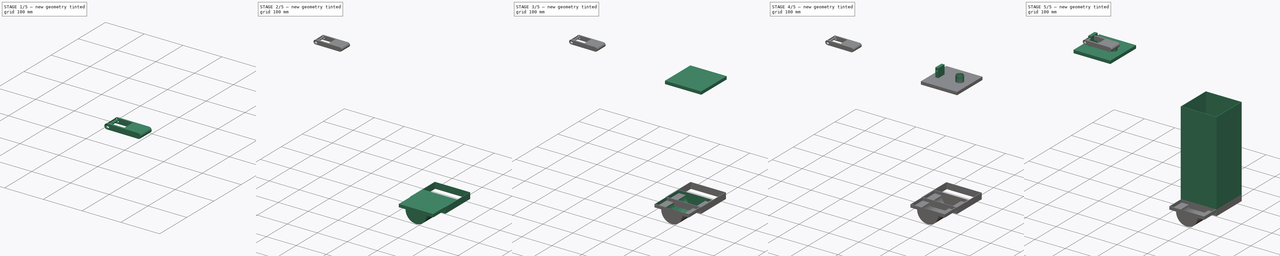
[diagram: build sequence overview — one tinted view per stage of 5, left to right]
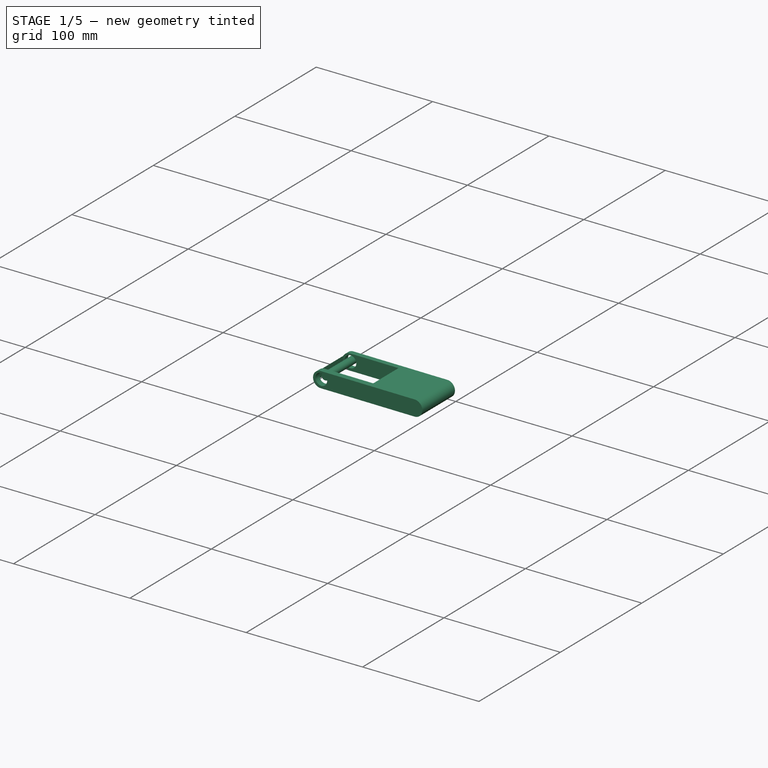
[diagram: stage 1 of 5 — iso view after this stage's code; geometry added in this stage tinted green]
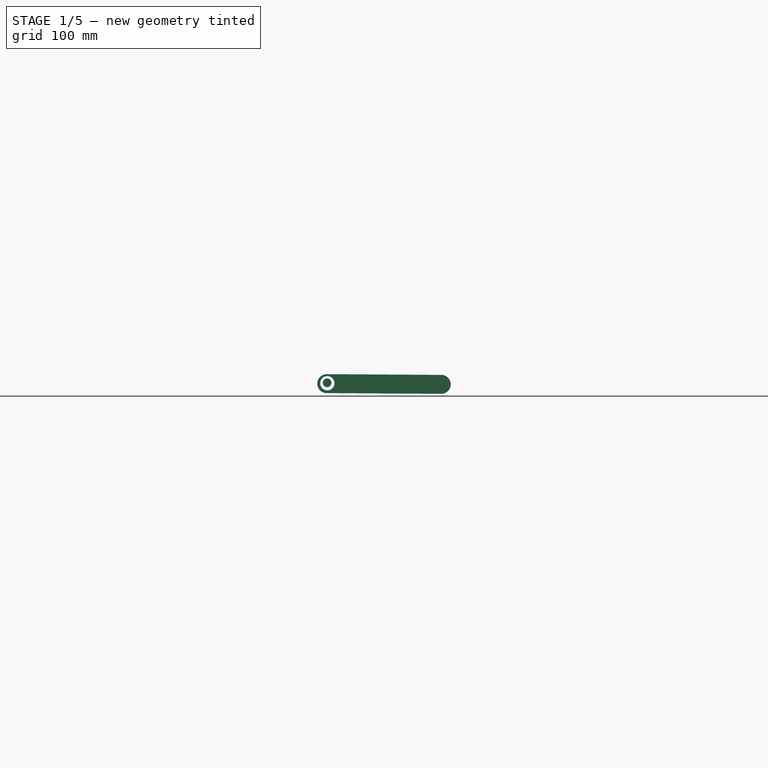
[diagram: stage 1 of 5 — front view after this stage's code; geometry added in this stage tinted green]
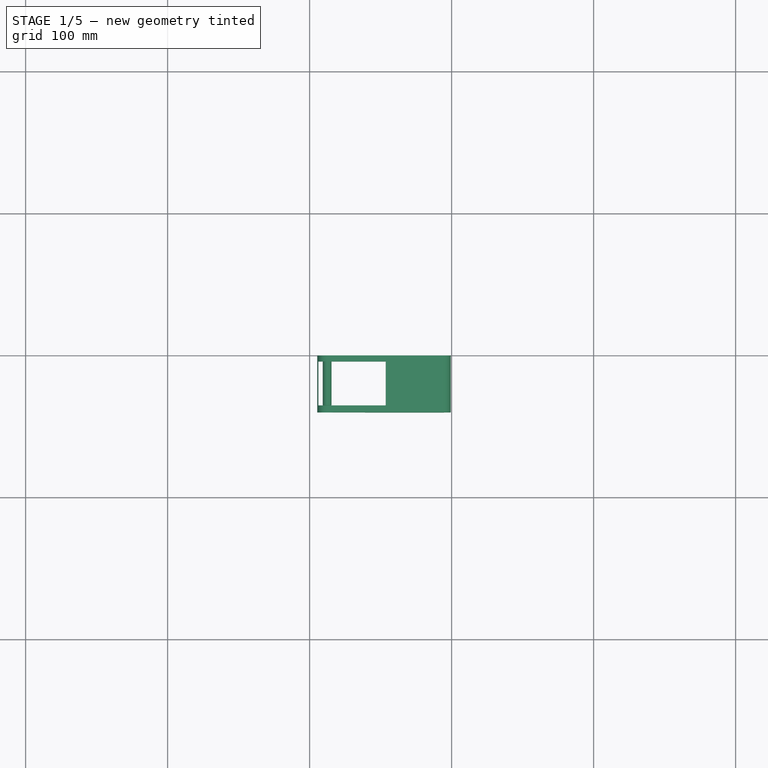
[diagram: stage 1 of 5 — top view after this stage's code; geometry added in this stage tinted green]
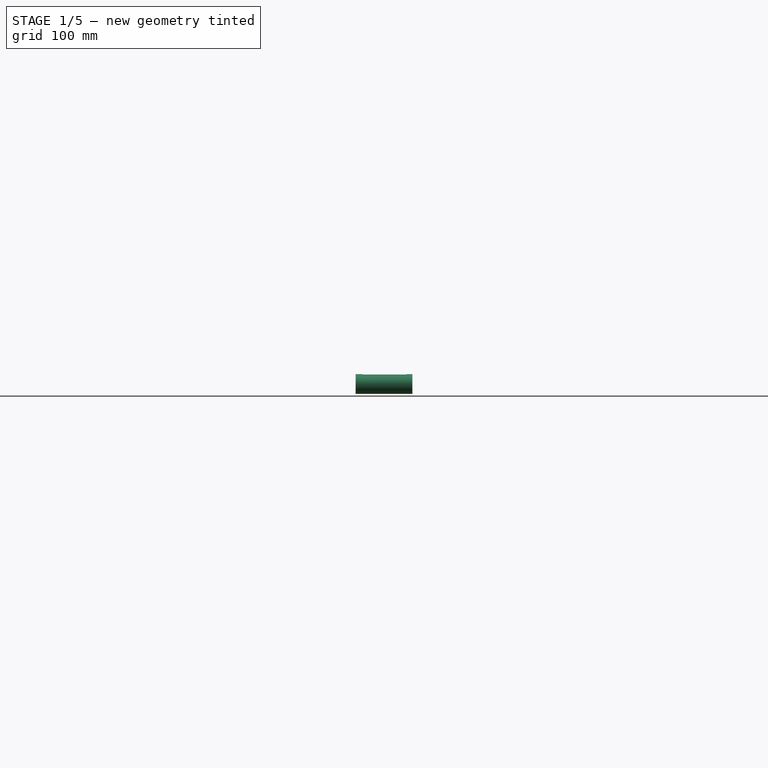
[diagram: stage 1 of 5 — right view after this stage's code; geometry added in this stage tinted green]
FCSTD DOCUMENT  (FreeCAD 0.20R29410 (Git))
Label: porfavorfunciona
License: All rights reserved
LicenseURL: http://en.wikipedia.org/wiki/All_rights_reserved
objects: Sketcher::SketchObject×17, PartDesign::Body×9, PartDesign::Pad×8, PartDesign::Pocket×5, Part::Fuse×2, PartDesign::SubtractiveCylinder×2, Part::FeaturePython×1, PartDesign::Hole×1
note: 61 computed .brp shape members not serialized (recipe doc carries the construction recipe); baked Part::Feature solids carry a one-line shape summary decoded from their .brp

FEATURE [PartDesign::Body] Body009
  Group = -> [Sketch016,Pad006]
  Origin = -> Origin009
  Placement = pos=(-350,0,350) rot=(0,0,1;0rad)
  Tip = -> Pad006
FEATURE [Sketcher::SketchObject] Sketch019
  FullyConstrained = false
  MapMode = 5
  Placement = pos=(0,0,0) rot=(1,0,0;1.5708rad)
  Support = -> [XZ_Plane010]
  sketch-geometry (4):
    g0: ArcOfCircle CenterX=-387.962 CenterY=380.893 CenterZ=0 NormalX=0 NormalY=0 NormalZ=1 AngleXU=0 Radius=6.66713 StartAngle=1.56468 EndAngle=4.70627
    g1: ArcOfCircle CenterX=-307.307 CenterY=380.4 CenterZ=0 NormalX=0 NormalY=0 NormalZ=1 AngleXU=0 Radius=6.66713 StartAngle=4.70627 EndAngle=7.84787
    g2: LineSegment StartX=-388.003 StartY=374.226 StartZ=0 EndX=-307.348 EndY=373.733 EndZ=0
    g3: LineSegment StartX=-307.266 StartY=387.067 StartZ=0 EndX=-387.921 EndY=387.56 EndZ=0
  constraints (5):
    c: Tangent(g0,g2) = -1.5708
    c: Tangent(g2,g1) = -1.5708
    c: Tangent(g1,g3) = -1.5708
    c: Tangent(g3,g0) = -1.5708
    c: Equal(g0,g1)
FEATURE [PartDesign::Pad] Pad008
  Direction = (0,-1,-2e-16)
  Length = 40
  Length2 = 10
  Placement = pos=(0,0,0) rot=(1,0,0;1.5708rad)
  Profile = -> Sketch019
  ReferenceAxis = -> Sketch019 [N_Axis]
  Type = 0
FEATURE [Sketcher::SketchObject] Sketch020
  FullyConstrained = false
  MapMode = 5
  Placement = pos=(2.35558,-8.55e-14,385.174) rot=(0.003058,0,0.999995;3.14159rad)
  Support = -> [Pad008]
  sketch-geometry (4):
    g0: LineSegment StartX=348.646 StartY=35.1548 StartZ=0 EndX=396.159 EndY=35.1548 EndZ=0
    g1: LineSegment StartX=396.159 StartY=35.1548 StartZ=0 EndX=396.159 EndY=4.15477 EndZ=0
    g2: LineSegment StartX=396.159 StartY=4.15477 StartZ=0 EndX=348.646 EndY=4.15477 EndZ=0
    g3: LineSegment StartX=348.646 StartY=4.15477 StartZ=0 EndX=348.646 EndY=35.1548 EndZ=0
  constraints (9):
    c: Coincident(g0,g1)
    c: Coincident(g1,g2)
    c: Coincident(g2,g3)
    c: Coincident(g3,g0)
    c: Horizontal(g0)
    c: Horizontal(g2)
    c: Vertical(g1)
    c: Vertical(g3)
    c: DistanceY(g1,g1) = 31
FEATURE [PartDesign::Pocket] Pocket
  BaseFeature = -> Pad008
  Direction = (-0.00611553,2e-16,-0.999981)
  Length = 5
  Length2 = 5
  Placement = pos=(0,0,0) rot=(1,0,0;1.5708rad)
  Profile = -> Sketch020
  ReferenceAxis = -> Sketch020 [N_Axis]
  Type = 1
FEATURE [Sketcher::SketchObject] Sketch021
  FullyConstrained = false
  MapMode = 5
  Placement = pos=(0,0,0) rot=(-1,0,0;1.5708rad)
  Support = -> [Pocket]
  sketch-geometry (1):
    g0: Circle CenterX=-387.544 CenterY=-381.199 CenterZ=0 NormalX=0 NormalY=0 NormalZ=1 AngleXU=0 Radius=5.01417
FEATURE [PartDesign::Pocket] Pocket003
  BaseFeature = -> Pocket
  Direction = (0,-1,-2e-16)
  Length = 5
  Length2 = 5
  Placement = pos=(0,0,0) rot=(1,0,0;1.5708rad)
  Profile = -> Sketch021
  ReferenceAxis = -> Sketch021 [N_Axis]
  Type = 1
FEATURE [PartDesign::Body] Body010
  Group = -> [Sketch019,Pad008,Sketch020,Pocket,Sketch021,Pocket003,Sketch023,Pocket004]
  Origin = -> Origin010
  Placement = pos=(0,18,0) rot=(0,0,1;0rad)
  Tip = -> Pocket004
FEATURE [Sketcher::SketchObject] Sketch024
  FullyConstrained = false
  MapMode = 5
  Placement = pos=(0,0,0) rot=(1,0,0;1.5708rad)
  Support = -> [XZ_Plane011]
  sketch-geometry (1):
    g0: Circle CenterX=-387.675 CenterY=381.498 CenterZ=0 NormalX=0 NormalY=0 NormalZ=1 AngleXU=0 Radius=3.06256
FEATURE [PartDesign::Pad] Pad009
  Direction = (0,-1,2e-16)
  Length = 35
  Length2 = 10
  Placement = pos=(0,0,0) rot=(1,0,0;1.5708rad)
  Profile = -> Sketch024
  ReferenceAxis = -> Sketch024 [N_Axis]
  Type = 0
FEATURE [PartDesign::Body] Body011
  Group = -> [Sketch024,Pad009]
  Origin = -> Origin011
  Tip = -> Pad009
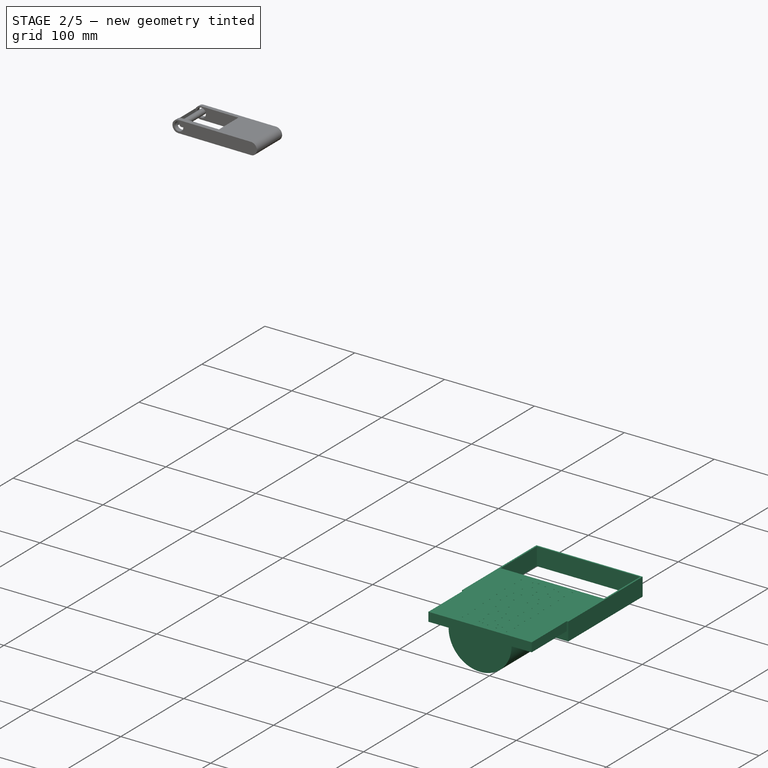
[diagram: stage 2 of 5 — iso view after this stage's code; geometry added in this stage tinted green]
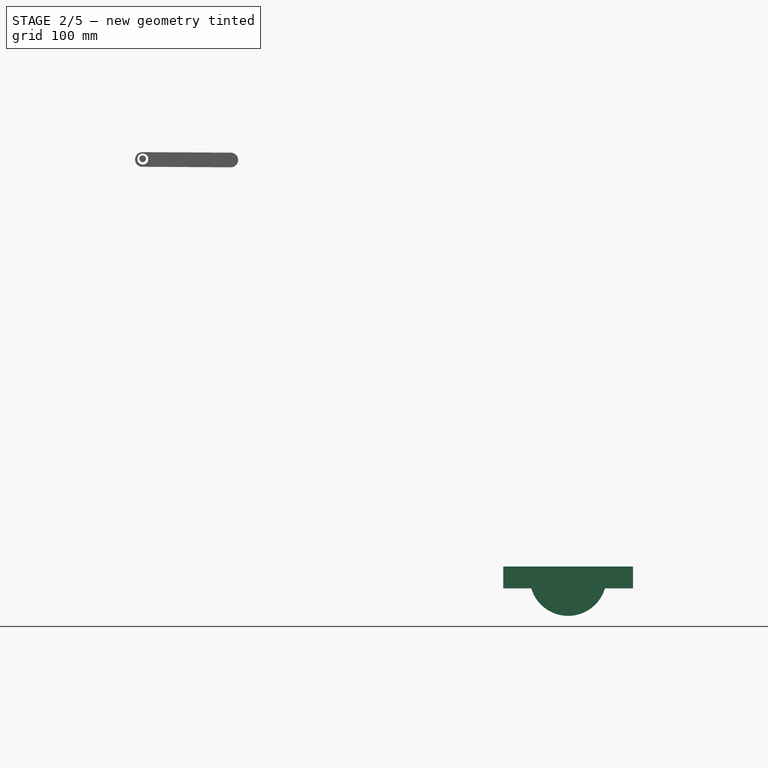
[diagram: stage 2 of 5 — front view after this stage's code; geometry added in this stage tinted green]
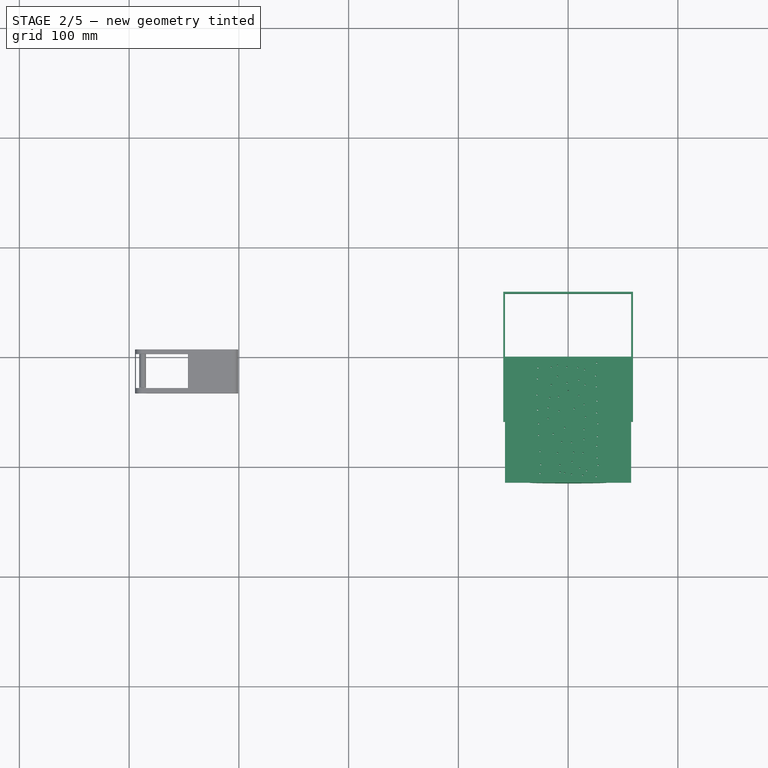
[diagram: stage 2 of 5 — top view after this stage's code; geometry added in this stage tinted green]
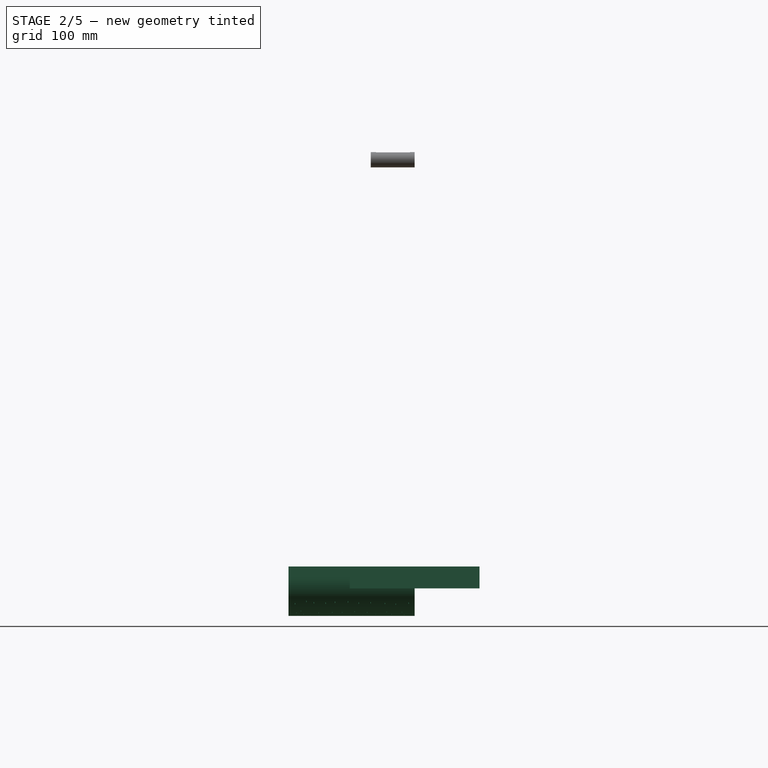
[diagram: stage 2 of 5 — right view after this stage's code; geometry added in this stage tinted green]
FEATURE [PartDesign::Body] Body004
  Group = -> [Sketch004,Pad002,Cylinder001,Sketch012,Pad003,Sketch013,Sketch014,Pocket001]
  Origin = -> Origin004
  Tip = -> Pocket001
FEATURE [PartDesign::Pad] Pad005
  Direction = (0,-1,2e-16)
  Length = 114.85
  Length2 = 10
  Placement = pos=(0,0,0) rot=(1,0,0;1.5708rad)
  Profile = -> Sketch010
  ReferenceAxis = -> Sketch010 [N_Axis]
  Type = 0
FEATURE [Sketcher::SketchObject] Sketch016
  AttachmentOffset = pos=(0,0,1) rot=(0,0,1;0rad)
  FullyConstrained = true
  MapMode = 5
  sketch-geometry (10):
    g0: LineSegment StartX=-59.1 StartY=59.1 StartZ=0 EndX=-59.1 EndY=-59.1 EndZ=0
    g1: LineSegment StartX=-59.1 StartY=-59.1 StartZ=0 EndX=59.1 EndY=-59.1 EndZ=0
    g2: LineSegment StartX=59.1 StartY=-59.1 StartZ=0 EndX=59.1 EndY=59.1 EndZ=0
    g3: LineSegment StartX=59.1 StartY=59.1 StartZ=0 EndX=-59.1 EndY=59.1 EndZ=0
    g4: GeomPoint X=0 Y=0 Z=0
    g5: LineSegment StartX=-57.45 StartY=57.45 StartZ=0 EndX=-57.45 EndY=-57.45 EndZ=0
    g6: LineSegment StartX=-57.45 StartY=-57.45 StartZ=0 EndX=57.45 EndY=-57.45 EndZ=0
    g7: LineSegment StartX=57.45 StartY=-57.45 StartZ=0 EndX=57.45 EndY=57.45 EndZ=0
    g8: LineSegment StartX=57.45 StartY=57.45 StartZ=0 EndX=-57.45 EndY=57.45 EndZ=0
    g9: GeomPoint X=0 Y=0 Z=0
  constraints (24):
    c: Coincident(g0,g1)
    c: Coincident(g1,g2)
    c: Coincident(g2,g3)
    c: Coincident(g3,g0)
    c: Horizontal(g1)
    c: Horizontal(g3)
    c: Vertical(g0)
    c: Vertical(g2)
    c: Symmetric(g1,g0,g4)
    c: Coincident(g4,g-1)
    c: Coincident(g5,g6)
    c: Coincident(g6,g7)
    c: Coincident(g7,g8)
    c: Coincident(g8,g5)
    c: Horizontal(g6)
    c: Horizontal(g8)
    c: Vertical(g5)
    c: Vertical(g7)
    c: Symmetric(g6,g5,g9)
    c: Coincident(g9,g4)
    c: DistanceY(g2,g2) = 118.2
    c: DistanceX(g1,g1) = 118.2
    c: DistanceY(g7,g7) = 114.9
    c: DistanceX(g8,g8) = 114.9
FEATURE [Sketcher::SketchObject] Sketch017
  FullyConstrained = false
  MapMode = 5
  Placement = pos=(0,1.1e-15,10) rot=(0,0,1;3.14159rad)
  Support = -> [Pad005]
  sketch-geometry (58):
    g0: Circle CenterX=27.5383 CenterY=10.0935 CenterZ=0 NormalX=0 NormalY=0 NormalZ=1 AngleXU=0 Radius=4.64971
    g1: Circle CenterX=27.9836 CenterY=20.0851 CenterZ=0 NormalX=0 NormalY=0 NormalZ=1 AngleXU=0 Radius=5.47488
    g2: Circle CenterX=28.4059 CenterY=34.8127 CenterZ=0 NormalX=0 NormalY=0 NormalZ=1 AngleXU=0 Radius=4.80778
    g3: Circle CenterX=27.8455 CenterY=48.5009 CenterZ=0 NormalX=0 NormalY=0 NormalZ=1 AngleXU=0 Radius=5.12688
    g4: Circle CenterX=27.0114 CenterY=61.0719 CenterZ=0 NormalX=0 NormalY=0 NormalZ=1 AngleXU=0 Radius=5.12689
    g5: Circle CenterX=26.939 CenterY=71.5508 CenterZ=0 NormalX=0 NormalY=0 NormalZ=1 AngleXU=0 Radius=5.76529
    g6: Circle CenterX=25.6432 CenterY=86.3241 CenterZ=0 NormalX=0 NormalY=0 NormalZ=1 AngleXU=0 Radius=6.42444
    g7: Circle CenterX=25.0267 CenterY=98.2974 CenterZ=0 NormalX=0 NormalY=0 NormalZ=1 AngleXU=0 Radius=6.14656
    g8: Circle CenterX=25.5248 CenterY=106.275 CenterZ=0 NormalX=0 NormalY=0 NormalZ=1 AngleXU=0 Radius=7.48836
    g9: Circle CenterX=-25.5527 CenterY=109.175 CenterZ=0 NormalX=0 NormalY=0 NormalZ=1 AngleXU=0 Radius=3.71825
    g10: Circle CenterX=-26.0228 CenterY=5.65323 CenterZ=0 NormalX=0 NormalY=0 NormalZ=1 AngleXU=0 Radius=4.81077
    g11: Circle CenterX=-25.0691 CenterY=17.4157 CenterZ=0 NormalX=0 NormalY=0 NormalZ=1 AngleXU=0 Radius=6.04019
    g12: Circle CenterX=-25.7049 CenterY=27.2707 CenterZ=0 NormalX=0 NormalY=0 NormalZ=1 AngleXU=0 Radius=6.484
    g13: Circle CenterX=-26.3407 CenterY=40.3048 CenterZ=0 NormalX=0 NormalY=0 NormalZ=1 AngleXU=0 Radius=6.54607
    g14: Circle CenterX=-26.0228 CenterY=51.1136 CenterZ=0 NormalX=0 NormalY=0 NormalZ=1 AngleXU=0 Radius=5.08647
    g15: Circle CenterX=-26.9765 CenterY=60.9686 CenterZ=0 NormalX=0 NormalY=0 NormalZ=1 AngleXU=0 Radius=5.73111
    g16: Circle CenterX=-26.6586 CenterY=72.7311 CenterZ=0 NormalX=0 NormalY=0 NormalZ=1 AngleXU=0 Radius=4.13276
    g17: Circle CenterX=-26.0228 CenterY=81.3145 CenterZ=0 NormalX=0 NormalY=0 NormalZ=1 AngleXU=0 Radius=7.85167
    g18: Circle CenterX=-26.3325 CenterY=92.0661 CenterZ=0 NormalX=0 NormalY=0 NormalZ=1 AngleXU=0 Radius=6.85924
    g19: Circle CenterX=-27.3026 CenterY=98.8564 CenterZ=0 NormalX=0 NormalY=0 NormalZ=1 AngleXU=0 Radius=7.5565
    g20: Circle CenterX=0 CenterY=31.0284 CenterZ=0 NormalX=0 NormalY=0 NormalZ=1 AngleXU=0 Radius=7.26534
    g21: Circle CenterX=8.31093 CenterY=49.5241 CenterZ=0 NormalX=0 NormalY=0 NormalZ=1 AngleXU=0 Radius=8.72938
    g22: Circle CenterX=0.99131 CenterY=23.831 CenterZ=0 NormalX=0 NormalY=0 NormalZ=1 AngleXU=0 Radius=6.29418
    g23: Circle CenterX=13.6183 CenterY=70.3328 CenterZ=0 NormalX=0 NormalY=0 NormalZ=1 AngleXU=0 Radius=9.19506
    g24: Circle CenterX=3.24578 CenterY=64.6758 CenterZ=0 NormalX=0 NormalY=0 NormalZ=1 AngleXU=0 Radius=7.72356
    g25: Circle CenterX=7.48098 CenterY=98.5782 CenterZ=0 NormalX=0 NormalY=0 NormalZ=1 AngleXU=0 Radius=4.24392
    g26: Circle CenterX=-10.5113 CenterY=101.478 CenterZ=0 NormalX=0 NormalY=0 NormalZ=1 AngleXU=0 Radius=3.28004
    g27: Circle CenterX=3.23367 CenterY=106.046 CenterZ=0 NormalX=0 NormalY=0 NormalZ=1 AngleXU=0 Radius=1.33466
    g28: Circle CenterX=-13.2665 CenterY=107.98 CenterZ=0 NormalX=0 NormalY=0 NormalZ=1 AngleXU=0 Radius=0.966177
    g29: Circle CenterX=-13.5134 CenterY=87.6754 CenterZ=0 NormalX=0 NormalY=0 NormalZ=1 AngleXU=0 Radius=4.47417
    g30: Circle CenterX=-4.9767 CenterY=87.2011 CenterZ=0 NormalX=0 NormalY=0 NormalZ=1 AngleXU=0 Radius=4.67091
    g31: Circle CenterX=9.72529 CenterY=87.6754 CenterZ=0 NormalX=0 NormalY=0 NormalZ=1 AngleXU=0 Radius=5.7305
    g32: Circle CenterX=-3.07968 CenterY=78.1902 CenterZ=0 NormalX=0 NormalY=0 NormalZ=1 AngleXU=0 Radius=4.6949
    g33: Circle CenterX=-14.4619 CenterY=75.3446 CenterZ=0 NormalX=0 NormalY=0 NormalZ=1 AngleXU=0 Radius=4.37243
    g34: Circle CenterX=-14.4619 CenterY=66.3337 CenterZ=0 NormalX=0 NormalY=0 NormalZ=1 AngleXU=0 Radius=4.37243
    g35: Circle CenterX=-15.8847 CenterY=54.9515 CenterZ=0 NormalX=0 NormalY=0 NormalZ=1 AngleXU=0 Radius=5.6911
    g36: Circle CenterX=-5.92523 CenterY=58.2714 CenterZ=0 NormalX=0 NormalY=0 NormalZ=1 AngleXU=0 Radius=4.76627
    g37: Circle CenterX=-5.45097 CenterY=47.3634 CenterZ=0 NormalX=0 NormalY=0 NormalZ=1 AngleXU=0 Radius=3.31979
    g38: Circle CenterX=-14.4619 CenterY=43.5693 CenterZ=0 NormalX=0 NormalY=0 NormalZ=1 AngleXU=0 Radius=5.71083
    g39: Circle CenterX=-15.4104 CenterY=25.5475 CenterZ=0 NormalX=0 NormalY=0 NormalZ=1 AngleXU=0 Radius=5.6911
    g40: Circle CenterX=-9.71929 CenterY=35.507 CenterZ=0 NormalX=0 NormalY=0 NormalZ=1 AngleXU=0 Radius=4.07972
    g41: Circle CenterX=-9.71929 CenterY=21.2792 CenterZ=0 NormalX=0 NormalY=0 NormalZ=1 AngleXU=0 Radius=4.76624
    g42: Circle CenterX=-14.9361 CenterY=11.794 CenterZ=0 NormalX=0 NormalY=0 NormalZ=1 AngleXU=0 Radius=3.41993
    g43: Circle CenterX=-8.77078 CenterY=9.897 CenterZ=0 NormalX=0 NormalY=0 NormalZ=1 AngleXU=0 Radius=4.29459
    g44: Circle CenterX=1.18864 CenterY=9.42273 CenterZ=0 NormalX=0 NormalY=0 NormalZ=1 AngleXU=0 Radius=3.31981
    g45: Circle CenterX=9.72529 CenterY=7.99997 CenterZ=0 NormalX=0 NormalY=0 NormalZ=1 AngleXU=0 Radius=3.8236
    g46: Circle CenterX=15.4164 CenterY=9.42273 CenterZ=0 NormalX=0 NormalY=0 NormalZ=1 AngleXU=0 Radius=4.76627
    g47: Circle CenterX=9.72529 CenterY=17.9594 CenterZ=0 NormalX=0 NormalY=0 NormalZ=1 AngleXU=0 Radius=4.47418
    g48: Circle CenterX=15.4164 CenterY=25.5475 CenterZ=0 NormalX=0 NormalY=0 NormalZ=1 AngleXU=0 Radius=5.30239
    g49: Circle CenterX=8.77678 CenterY=36.4555 CenterZ=0 NormalX=0 NormalY=0 NormalZ=1 AngleXU=0 Radius=4.05205
    g50: Circle CenterX=16.8392 CenterY=37.404 CenterZ=0 NormalX=0 NormalY=0 NormalZ=1 AngleXU=0 Radius=4.29458
    g51: Circle CenterX=18.2619 CenterY=46.4149 CenterZ=0 NormalX=0 NormalY=0 NormalZ=1 AngleXU=0 Radius=5.21686
    g52: Circle CenterX=18.2619 CenterY=56.3743 CenterZ=0 NormalX=0 NormalY=0 NormalZ=1 AngleXU=0 Radius=2.76539
    g53: Circle CenterX=5.93123 CenterY=77.7159 CenterZ=0 NormalX=0 NormalY=0 NormalZ=1 AngleXU=0 Radius=3.3535
    g54: Circle CenterX=-3.55393 CenterY=95.7378 CenterZ=0 NormalX=0 NormalY=0 NormalZ=1 AngleXU=0 Radius=3.79405
    g55: Circle CenterX=7.35401 CenterY=105.223 CenterZ=0 NormalX=0 NormalY=0 NormalZ=1 AngleXU=0 Radius=6.45061
    g56: Circle CenterX=-3.07968 CenterY=107.12 CenterZ=0 NormalX=0 NormalY=0 NormalZ=1 AngleXU=0 Radius=5.40739
    g57: Circle CenterX=-16.8332 CenterY=103.8 CenterZ=0 NormalX=0 NormalY=0 NormalZ=1 AngleXU=0 Radius=7.12967
FEATURE [PartDesign::Hole] Hole
  BaseFeature = -> Pad005
  CustomThreadClearance = 0
  Depth = 340.522
  DepthType = 1
  Diameter = 1.2
  DrillForDepth = false
  DrillPoint = 1
  DrillPointAngle = 118
  HoleCutCountersinkAngle = 90
  HoleCutCustomValues = false
  HoleCutDepth = 0
  HoleCutDiameter = 6.1
  HoleCutType = 0
  ModelThread = false
  Placement = pos=(0,0,0) rot=(1,0,0;1.5708rad)
  Profile = -> Sketch017
  Tapered = false
  TaperedAngle = 90
  ThreadClass = 0
  ThreadDepth = 340.522
  ThreadDepthType = 0
  ThreadDirection = 0
  ThreadFit = 0
  ThreadSize = 0
  ThreadType = 1
  Threaded = false
  UseCustomThreadClearance = false
FEATURE [PartDesign::Body] Body008
  Group = -> [Sketch010,Pad005,Sketch017,Hole,Sketch018,Pocket002,Cylinder]
  Origin = -> Origin008
  Placement = pos=(0,350,-350) rot=(0,0,1;0rad)
  Tip = -> Cylinder
FEATURE [PartDesign::Pad] Pad006
  Direction = (0,0,1)
  Length = 10
  Length2 = 10
  Profile = -> Sketch016
  ReferenceAxis = -> Sketch016 [N_Axis]
  Type = 4
FEATURE [Sketcher::SketchObject] Sketch023
  FullyConstrained = false
  MapMode = 5
  Placement = pos=(2.27,3,372.84) rot=(1,0,0;3.14159rad)
  sketch-geometry (1):
    g0: Circle CenterX=-325.294 CenterY=20.778 CenterZ=0 NormalX=0 NormalY=0 NormalZ=1 AngleXU=0 Radius=12.5
  constraints (1):
    c: Radius(g0) = 12.5
FEATURE [PartDesign::Pocket] Pocket004
  BaseFeature = -> Pocket003
  Direction = (0,1e-16,1)
  Length = 10
  Length2 = 5
  Placement = pos=(0,0,0) rot=(1,0,0;1.5708rad)
  Profile = -> Sketch023
  ReferenceAxis = -> Sketch023 [N_Axis]
  Type = 0
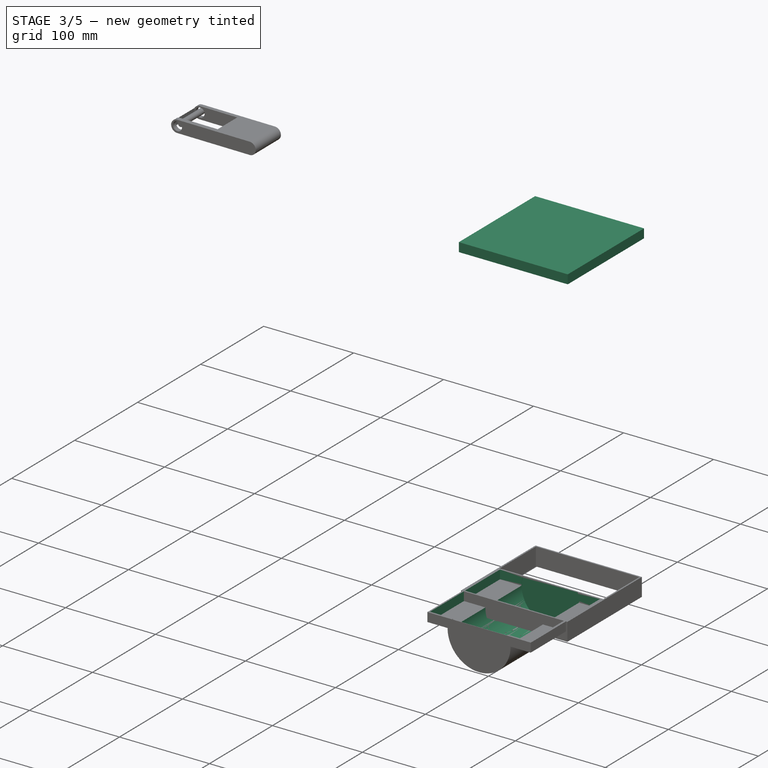
[diagram: stage 3 of 5 — iso view after this stage's code; geometry added in this stage tinted green]
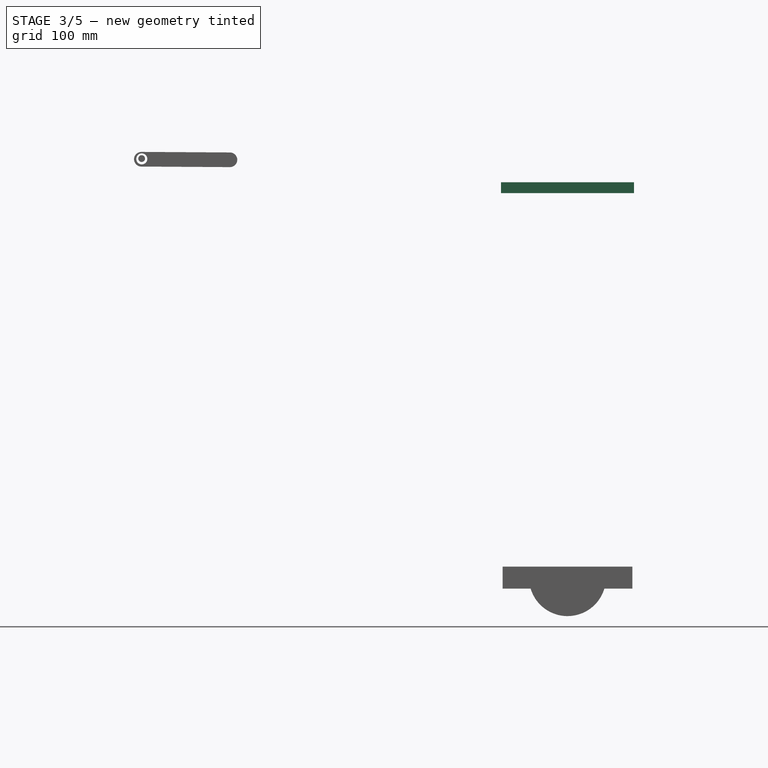
[diagram: stage 3 of 5 — front view after this stage's code; geometry added in this stage tinted green]
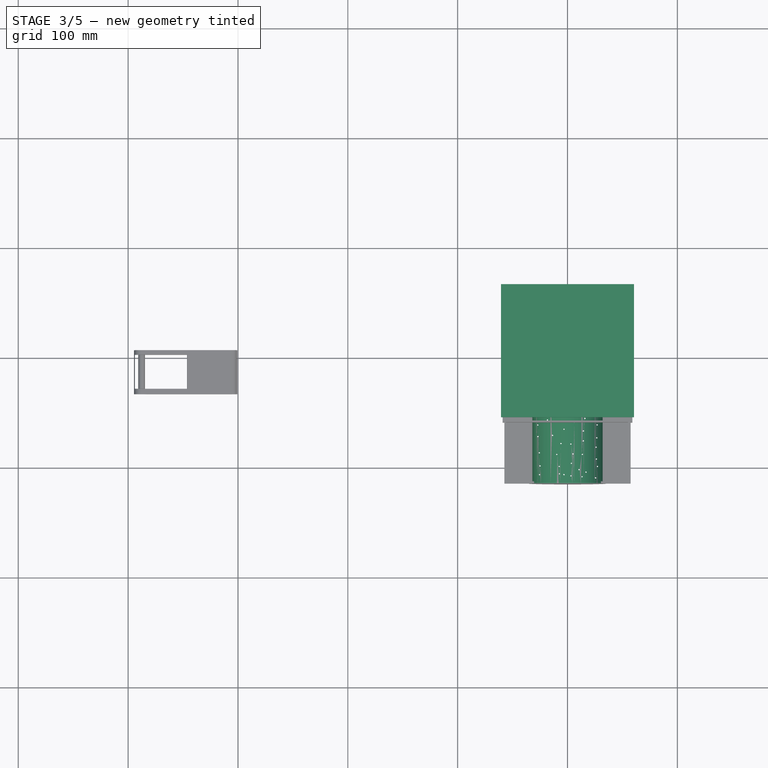
[diagram: stage 3 of 5 — top view after this stage's code; geometry added in this stage tinted green]
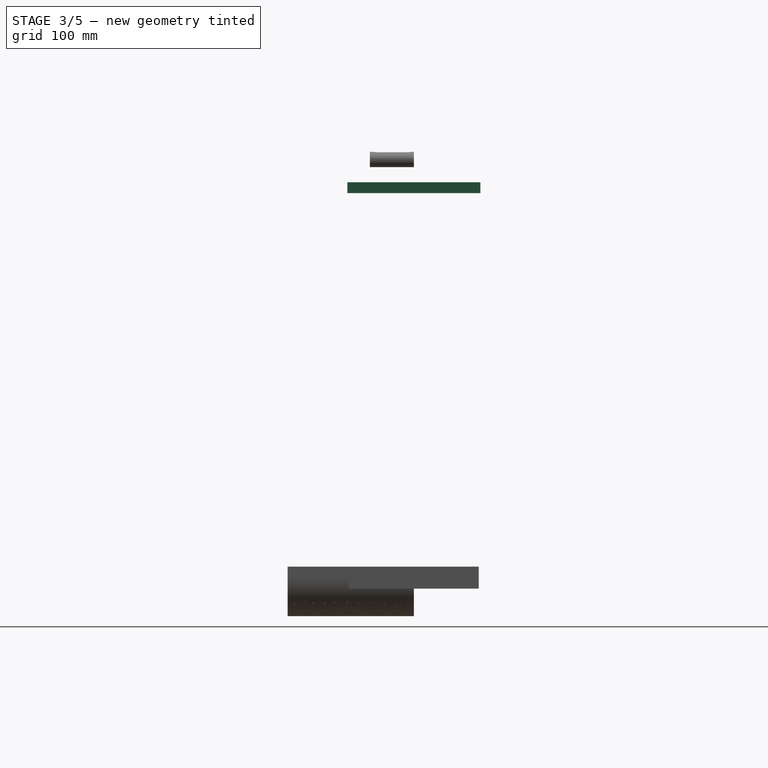
[diagram: stage 3 of 5 — right view after this stage's code; geometry added in this stage tinted green]
FEATURE [Sketcher::SketchObject] Sketch007
  AttachmentOffset = pos=(0,0,-180) rot=(0,0,1;0rad)
  FullyConstrained = false
  MapMode = 5
  Placement = pos=(0,0,-180) rot=(0,0,1;0rad)
  Support = -> [XY_Plane005]
  sketch-geometry (10):
    g0: LineSegment StartX=57.4163 StartY=59.0411 StartZ=0 EndX=34.9663 EndY=59.0411 EndZ=0
    g1: LineSegment StartX=34.9663 StartY=59.0411 StartZ=0 EndX=34.9663 EndY=-55.8089 EndZ=0
    g2: LineSegment StartX=34.9663 StartY=-55.8089 StartZ=0 EndX=57.4163 EndY=-55.8089 EndZ=0
    g3: LineSegment StartX=57.4163 StartY=-55.8089 StartZ=0 EndX=57.4163 EndY=59.0411 EndZ=0
    g4: LineSegment StartX=-57.7305 StartY=58.4271 StartZ=0 EndX=-35.2805 EndY=58.4271 EndZ=0
    g5: LineSegment StartX=-35.2805 StartY=58.4271 StartZ=0 EndX=-35.2805 EndY=-56.4229 EndZ=0
    g6: LineSegment StartX=-35.2805 StartY=-56.4229 StartZ=0 EndX=-57.7305 EndY=-56.4229 EndZ=0
    g7: LineSegment StartX=-57.7305 StartY=-56.4229 StartZ=0 EndX=-57.7305 EndY=58.4271 EndZ=0
    g8: LineSegment StartX=34.9527 StartY=57.5008 StartZ=0 EndX=34.9527 EndY=52.6508 EndZ=0
    g9: LineSegment StartX=-35.2805 StartY=52.6508 StartZ=0 EndX=-35.2805 EndY=57.5008 EndZ=0
  constraints (23):
    c: Coincident(g0,g1)
    c: Coincident(g1,g2)
    c: Coincident(g2,g3)
    c: Coincident(g3,g0)
    c: Horizontal(g0)
    c: Horizontal(g2)
    c: Vertical(g1)
    c: Vertical(g3)
    c: Coincident(g4,g5)
    c: Coincident(g5,g6)
    c: Coincident(g6,g7)
    c: Coincident(g7,g4)
    c: Horizontal(g4)
    c: Horizontal(g6)
    c: Vertical(g5)
    c: Vertical(g7)
    c: Vertical(g8)
    c: Vertical(g9)
    c: PointOnObject(g9,g5)
    c: DistanceX(g0,g0) = 22.45
    c: DistanceX(g4,g4) = 22.45
    c: DistanceY(g7,g7) = 114.85
    c: DistanceY(g3,g3) = 114.85
FEATURE [PartDesign::Body] Body005
  Group = -> [Sketch007]
  Origin = -> Origin005
FEATURE [PartDesign::Pad] Pad002
  Direction = (0,0,1)
  Length = 10
  Length2 = 10
  Profile = -> Sketch004
  ReferenceAxis = -> Sketch004 [N_Axis]
  Type = 0
FEATURE [Sketcher::SketchObject] Sketch018
  FullyConstrained = false
  MapMode = 5
  Placement = pos=(0,1.1e-15,10) rot=(0,0,1;3.14159rad)
  Support = -> [Hole]
  sketch-geometry (4):
    g0: LineSegment StartX=-55.1145 StartY=112.802 StartZ=0 EndX=55.8855 EndY=112.802 EndZ=0
    g1: LineSegment StartX=55.8855 StartY=112.802 StartZ=0 EndX=55.8855 EndY=1.8019 EndZ=0
    g2: LineSegment StartX=55.8855 StartY=1.8019 StartZ=0 EndX=-55.1145 EndY=1.8019 EndZ=0
    g3: LineSegment StartX=-55.1145 StartY=1.8019 StartZ=0 EndX=-55.1145 EndY=112.802 EndZ=0
  constraints (10):
    c: Coincident(g0,g1)
    c: Coincident(g1,g2)
    c: Coincident(g2,g3)
    c: Coincident(g3,g0)
    c: Horizontal(g0)
    c: Horizontal(g2)
    c: Vertical(g1)
    c: Vertical(g3)
    c: DistanceX(g0,g0) = 111
    c: DistanceY(g3,g3) = 111
FEATURE [PartDesign::Pocket] Pocket002
  BaseFeature = -> Hole
  Direction = (0,-2e-16,-1)
  Length = 9.8
  Length2 = 5
  Placement = pos=(0,0,0) rot=(1,0,0;1.5708rad)
  Profile = -> Sketch018
  ReferenceAxis = -> Sketch018 [N_Axis]
  Type = 0
FEATURE [PartDesign::SubtractiveCylinder] Cylinder
  Angle = 360
  AttacherType = Attacher::AttachEngine3D
  AttachmentOffset = pos=(0,0,1.5) rot=(0,0,1;0rad)
  BaseFeature = -> Pocket002
  FirstAngle = 0
  Height = 113
  MapMode = 5
  Placement = pos=(0,-1.5,-3e-16) rot=(1,0,0;1.5708rad)
  Radius = 32
  SecondAngle = 0
  Support = -> [XZ_Plane008]
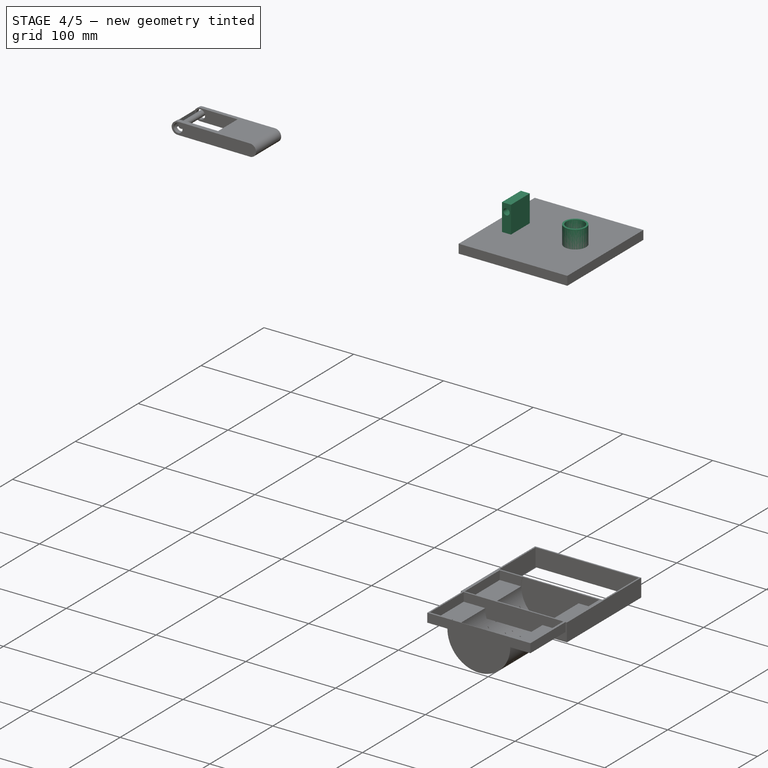
[diagram: stage 4 of 5 — iso view after this stage's code; geometry added in this stage tinted green]
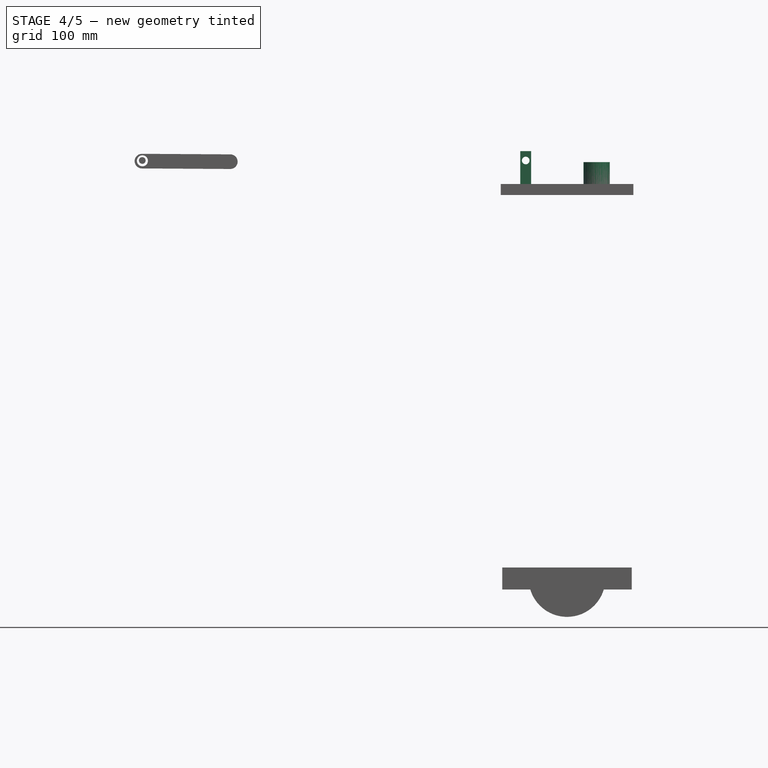
[diagram: stage 4 of 5 — front view after this stage's code; geometry added in this stage tinted green]
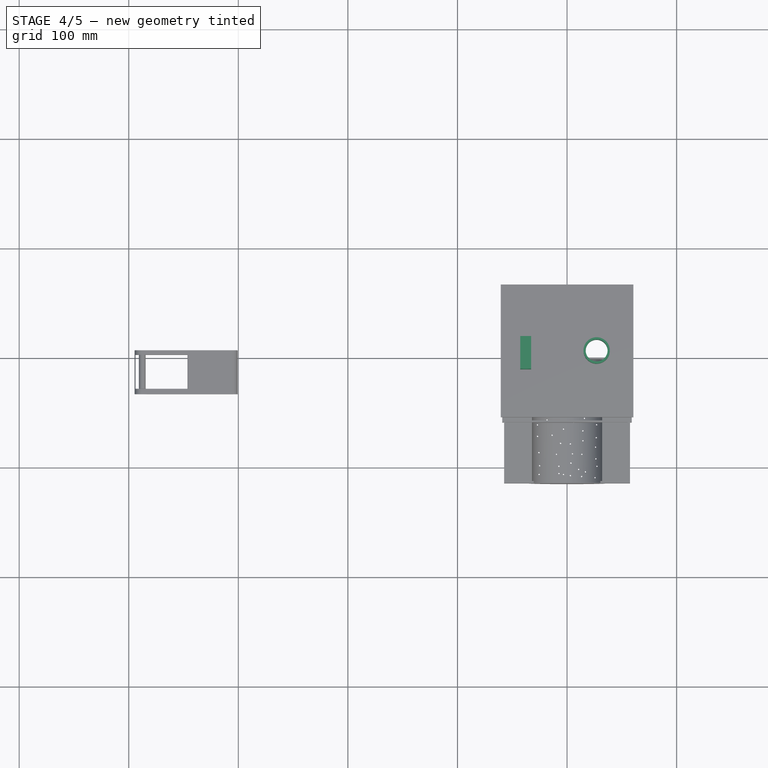
[diagram: stage 4 of 5 — top view after this stage's code; geometry added in this stage tinted green]
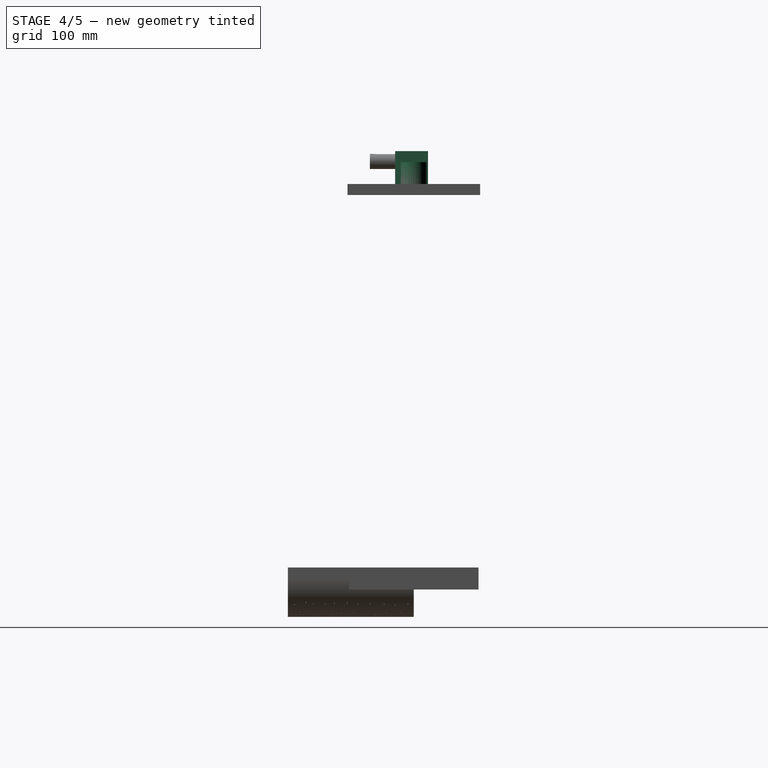
[diagram: stage 4 of 5 — right view after this stage's code; geometry added in this stage tinted green]
FEATURE [PartDesign::SubtractiveCylinder] Cylinder001
  Angle = 360
  AttacherType = Attacher::AttachEngine3D
  AttachmentOffset = pos=(27,0,-367) rot=(0,0,1;0rad)
  BaseFeature = -> Pad002
  FirstAngle = 0
  Height = 23
  MapMode = 3
  Placement = pos=(27,-8.15e-14,367) rot=(1,0,0;3.14159rad)
  Radius = 10
  SecondAngle = 0
  Support = -> [XZ_Plane004]
FEATURE [Sketcher::SketchObject] Sketch009
  FullyConstrained = true
  MapMode = 5
  Placement = pos=(0,0,0) rot=(1,0,0;1.5708rad)
  Support = -> [XZ_Plane006]
  sketch-geometry (5):
    g0: ArcOfCircle CenterX=0 CenterY=0 CenterZ=0 NormalX=0 NormalY=0 NormalZ=1 AngleXU=0 Radius=35 StartAngle=3.14159 EndAngle=6.28319
    g1: LineSegment StartX=-57.45 StartY=0 StartZ=0 EndX=-35 EndY=4.3e-15 EndZ=0
    g2: LineSegment StartX=35 StartY=-8.6e-15 StartZ=0 EndX=57.45 EndY=-8.6e-15 EndZ=0
    g3: LineSegment StartX=-57.45 StartY=10 StartZ=0 EndX=-57.45 EndY=0 EndZ=0
    g4: LineSegment StartX=57.45 StartY=10 StartZ=0 EndX=57.45 EndY=-8.9e-15 EndZ=0
  constraints (16):
    c: Coincident(g0,g-1)
    c: PointOnObject(g0,g-1)
    c: PointOnObject(g0,g-1)
    c: PointOnObject(g1,g-1)
    c: Coincident(g1,g0)
    c: Coincident(g2,g0)
    c: Radius(g0) = 35
    c: DistanceX(g1,g1) = 22.45
    c: DistanceX(g2,g2) = 22.45
    c: Horizontal(g2)
    c: Coincident(g3,g1)
    c: Vertical(g3)
    c: Coincident(g4,g2)
    c: Vertical(g4)
    c: DistanceY(g4,g4) = 10
    c: DistanceY(g3,g3) = 10
FEATURE [PartDesign::Body] Body006
  Group = -> [Sketch009]
  Origin = -> Origin006
FEATURE [Sketcher::SketchObject] Sketch010
  FullyConstrained = true
  MapMode = 5
  Placement = pos=(0,0,0) rot=(1,0,0;1.5708rad)
  sketch-geometry (6):
    g0: ArcOfCircle CenterX=0 CenterY=0 CenterZ=0 NormalX=0 NormalY=0 NormalZ=1 AngleXU=0 Radius=35 StartAngle=3.14159 EndAngle=6.28319
    g1: LineSegment StartX=-57.45 StartY=0 StartZ=0 EndX=-35 EndY=4.3e-15 EndZ=0
    g2: LineSegment StartX=35 StartY=-8.6e-15 StartZ=0 EndX=57.45 EndY=-8.6e-15 EndZ=0
    g3: LineSegment StartX=-57.45 StartY=10 StartZ=0 EndX=-57.45 EndY=0 EndZ=0
    g4: LineSegment StartX=57.45 StartY=10 StartZ=0 EndX=57.45 EndY=-8.9e-15 EndZ=0
    g5: LineSegment StartX=-57.45 StartY=10 StartZ=0 EndX=57.45 EndY=10 EndZ=0
  constraints (18):
    c: Coincident(g0,g-1)
    c: PointOnObject(g0,g-1)
    c: PointOnObject(g0,g-1)
    c: PointOnObject(g1,g-1)
    c: Coincident(g1,g0)
    c: Coincident(g2,g0)
    c: Radius(g0) = 35
    c: DistanceX(g1,g1) = 22.45
    c: DistanceX(g2,g2) = 22.45
    c: Horizontal(g2)
    c: Coincident(g3,g1)
    c: Vertical(g3)
    c: Coincident(g4,g2)
    c: Vertical(g4)
    c: DistanceY(g4,g4) = 10
    c: DistanceY(g3,g3) = 10
    c: Coincident(g3,g5)
    c: Coincident(g5,g4)
FEATURE [Part::FeaturePython] Tube  # WARN: FeaturePython — macro-defined, semantics opaque (R4)
  AttacherType = Attacher::AttachEngine3D
  Height = 30
  InnerRadius = 10
  OuterRadius = 12
  Placement = pos=(27,0,350) rot=(0,0,1;0rad)
FEATURE [Sketcher::SketchObject] Sketch012
  AttachmentOffset = pos=(0,3,0) rot=(0,0,1;0rad)
  FullyConstrained = true
  MapMode = 5
  Placement = pos=(27,3,360) rot=(0,0,1;0rad)
  Support = -> [Cylinder001]
  sketch-geometry (4):
    g0: LineSegment StartX=-69.7338 StartY=9.99153 StartZ=0 EndX=-59.7338 EndY=9.99153 EndZ=0
    g1: LineSegment StartX=-59.7338 StartY=9.99153 StartZ=0 EndX=-59.7338 EndY=-20.0085 EndZ=0
    g2: LineSegment StartX=-59.7338 StartY=-20.0085 StartZ=0 EndX=-69.7338 EndY=-20.0085 EndZ=0
    g3: LineSegment StartX=-69.7338 StartY=-20.0085 StartZ=0 EndX=-69.7338 EndY=9.99153 EndZ=0
  constraints (10):
    c: Coincident(g0,g1)
    c: Coincident(g1,g2)
    c: Coincident(g2,g3)
    c: Coincident(g3,g0)
    c: DistanceX(g0,g0) = 10
    c: DistanceX(g2,g2) = 10
    c: DistanceY(g3,g3) = 30
    c: DistanceY(g1,g1) = 30
    c: Block(g1)
    c: Block(g3)
FEATURE [PartDesign::Pad] Pad003
  BaseFeature = -> Cylinder001
  Direction = (0,-3e-16,1)
  Length = 30
  Length2 = 10
  Placement = pos=(27,-8.1e-14,367) rot=(1,0,0;3.14159rad)
  Profile = -> Sketch012
  ReferenceAxis = -> Sketch012 [N_Axis]
  Type = 0
FEATURE [Sketcher::SketchObject] Sketch013
  FullyConstrained = true
  MapMode = 5
  Placement = pos=(-42.7338,-8.1e-14,367) rot=(0.57735,0.57735,-0.57735;4.18879rad)
  Support = -> [Pad003]
  sketch-geometry (4):
    g0: LineSegment StartX=-15.0616 StartY=3.91434 StartZ=0 EndX=15.351 EndY=3.91434 EndZ=0
    g1: LineSegment StartX=15.351 StartY=3.91434 StartZ=0 EndX=15.351 EndY=-12.6619 EndZ=0
    g2: LineSegment StartX=15.351 StartY=-12.6619 StartZ=0 EndX=-15.0616 EndY=-12.6619 EndZ=0
    g3: LineSegment StartX=-15.0616 StartY=-12.6619 StartZ=0 EndX=-15.0616 EndY=3.91434 EndZ=0
  constraints (10):
    c: Coincident(g0,g1)
    c: Coincident(g1,g2)
    c: Coincident(g2,g3)
    c: Coincident(g3,g0)
    c: Horizontal(g0)
    c: Horizontal(g2)
    c: Vertical(g1)
    c: Vertical(g3)
    c: Block(g3)
    c: Block(g1)
FEATURE [Sketcher::SketchObject] Sketch014
  FullyConstrained = true
  MapMode = 5
  Placement = pos=(27,-20.01,380) rot=(0,0.707107,-0.707107;3.14159rad)
  sketch-geometry (1):
    g0: Circle CenterX=64.7279 CenterY=-1.47525 CenterZ=0 NormalX=0 NormalY=0 NormalZ=1 AngleXU=0 Radius=3.48427
  constraints (2):
    c: Block(g0)
    c: Radius(g0) = 3.48427
FEATURE [PartDesign::Pocket] Pocket001
  BaseFeature = -> Pad003
  Direction = (-1e-16,1,0)
  Length = 5
  Length2 = 5
  Placement = pos=(27,-8.1e-14,367) rot=(1,0,0;3.14159rad)
  Profile = -> Sketch014
  ReferenceAxis = -> Sketch014 [N_Axis]
  Type = 1
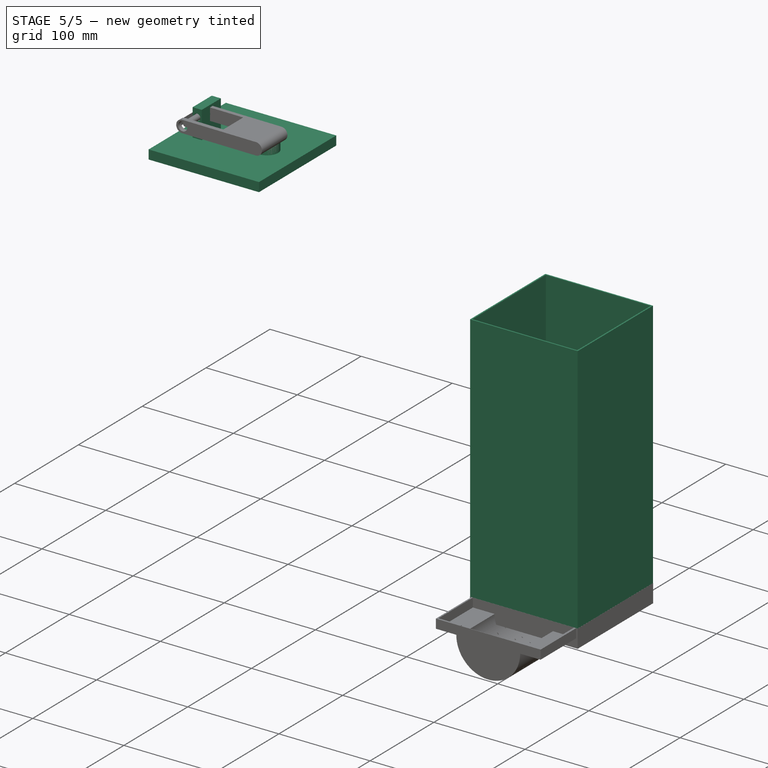
[diagram: stage 5 of 5 — iso view after this stage's code; geometry added in this stage tinted green]
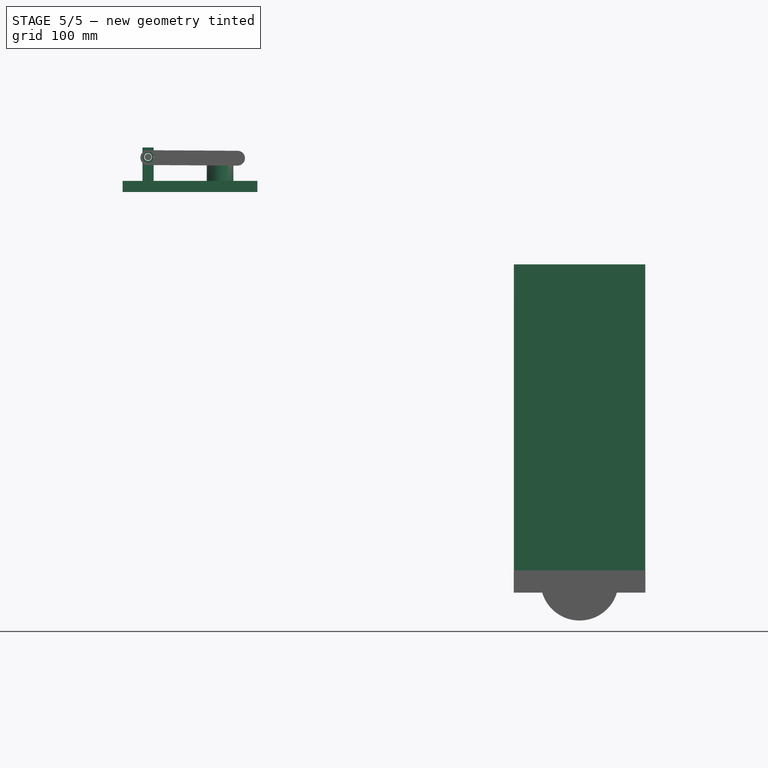
[diagram: stage 5 of 5 — front view after this stage's code; geometry added in this stage tinted green]
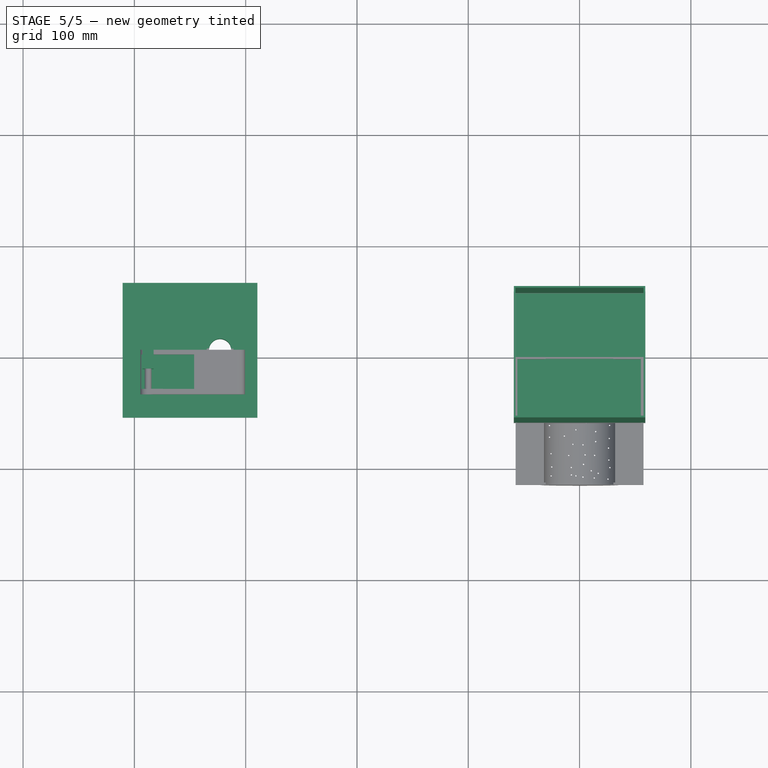
[diagram: stage 5 of 5 — top view after this stage's code; geometry added in this stage tinted green]
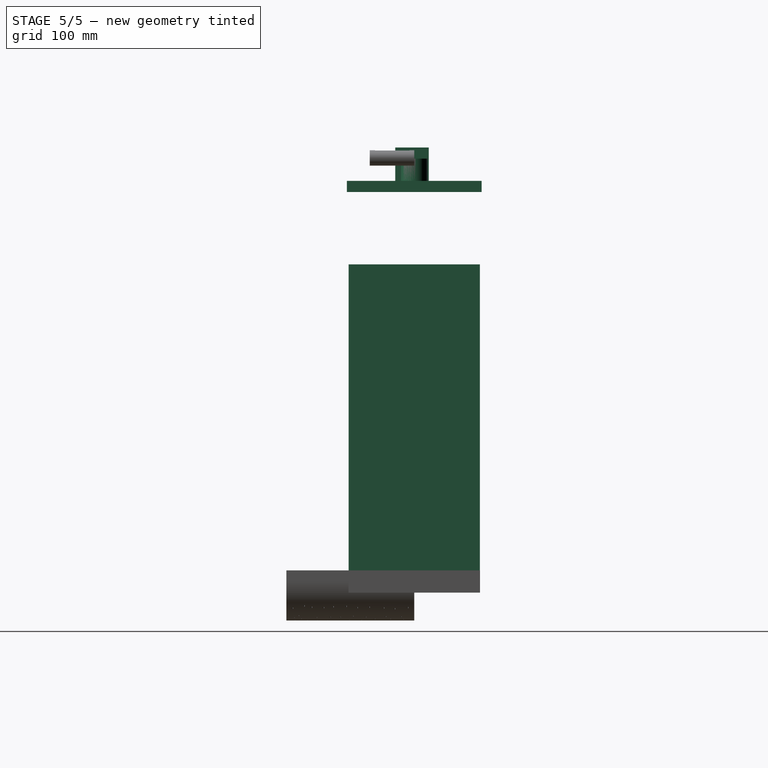
[diagram: stage 5 of 5 — right view after this stage's code; geometry added in this stage tinted green]
FEATURE [Sketcher::SketchObject] Sketch
  FullyConstrained = true
  MapMode = 5
  Support = -> [XY_Plane]
  sketch-geometry (10):
    g0: LineSegment StartX=-59 StartY=-59 StartZ=0 EndX=-59 EndY=59 EndZ=0
    g1: LineSegment StartX=-59 StartY=59 StartZ=0 EndX=59 EndY=59 EndZ=0
    g2: LineSegment StartX=59 StartY=59 StartZ=0 EndX=59 EndY=-59 EndZ=0
    g3: LineSegment StartX=59 StartY=-59 StartZ=0 EndX=-59 EndY=-59 EndZ=0
    g4: GeomPoint X=0 Y=0 Z=0
    g5: LineSegment StartX=-57.5 StartY=-57.5 StartZ=0 EndX=-57.5 EndY=57.5 EndZ=0
    g6: LineSegment StartX=-57.5 StartY=57.5 StartZ=0 EndX=57.5 EndY=57.5 EndZ=0
    g7: LineSegment StartX=57.5 StartY=57.5 StartZ=0 EndX=57.5 EndY=-57.5 EndZ=0
    g8: LineSegment StartX=57.5 StartY=-57.5 StartZ=0 EndX=-57.5 EndY=-57.5 EndZ=0
    g9: GeomPoint X=0 Y=0 Z=0
  constraints (24):
    c: Coincident(g0,g1)
    c: Coincident(g1,g2)
    c: Coincident(g2,g3)
    c: Coincident(g3,g0)
    c: Horizontal(g1)
    c: Horizontal(g3)
    c: Vertical(g0)
    c: Vertical(g2)
    c: Symmetric(g1,g0,g4)
    c: Coincident(g4,g-1)
    c: Coincident(g5,g6)
    c: Coincident(g6,g7)
    c: Coincident(g7,g8)
    c: Coincident(g8,g5)
    c: Horizontal(g6)
    c: Horizontal(g8)
    c: Vertical(g5)
    c: Vertical(g7)
    c: Symmetric(g6,g5,g9)
    c: DistanceX(g1,g1) = 118
    c: DistanceX(g6,g6) = 115
    c: DistanceY(g0,g0) = 118
    c: DistanceY(g5,g5) = 115
    c: Coincident(g9,g4)
FEATURE [PartDesign::Pad] Pad
  Direction = (0,0,1)
  Length = 285
  Length2 = 10
  Profile = -> Sketch
  ReferenceAxis = -> Sketch [N_Axis]
  Type = 0
FEATURE [PartDesign::Body] Body
  Group = -> [Sketch,Pad]
  Origin = -> Origin
  Tip = -> Pad
FEATURE [Sketcher::SketchObject] Sketch001
  FullyConstrained = true
  MapMode = 5
  Support = -> [XY_Plane001]
  sketch-geometry (5):
    g0: LineSegment StartX=-59 StartY=-59 StartZ=0 EndX=-59 EndY=59 EndZ=0
    g1: LineSegment StartX=-59 StartY=59 StartZ=0 EndX=59 EndY=59 EndZ=0
    g2: LineSegment StartX=59 StartY=59 StartZ=0 EndX=59 EndY=-59 EndZ=0
    g3: LineSegment StartX=59 StartY=-59 StartZ=0 EndX=-59 EndY=-59 EndZ=0
    g4: GeomPoint X=0 Y=0 Z=0
  constraints (12):
    c: Coincident(g0,g1)
    c: Coincident(g1,g2)
    c: Coincident(g2,g3)
    c: Coincident(g3,g0)
    c: Horizontal(g1)
    c: Horizontal(g3)
    c: Vertical(g0)
    c: Vertical(g2)
    c: Symmetric(g1,g0,g4)
    c: Coincident(g4,g-1)
    c: DistanceX(g1,g1) = 118
    c: DistanceY(g2,g2) = 118
FEATURE [PartDesign::Pad] Pad001
  Direction = (0,0,1)
  Length = 1
  Length2 = 10
  Profile = -> Sketch001
  ReferenceAxis = -> Sketch001 [N_Axis]
  Type = 0
FEATURE [PartDesign::Body] Body001
  Group = -> [Sketch001,Pad001]
  Origin = -> Origin001
  Tip = -> Pad001
FEATURE [Sketcher::SketchObject] Sketch004
  AttachmentOffset = pos=(0,0,350) rot=(0,0,1;0rad)
  FullyConstrained = true
  MapMode = 5
  Placement = pos=(0,0,350) rot=(0,0,1;0rad)
  Support = -> [XY_Plane004]
  sketch-geometry (5):
    g0: LineSegment StartX=-60.52 StartY=-60.52 StartZ=0 EndX=-60.52 EndY=60.52 EndZ=0
    g1: LineSegment StartX=-60.52 StartY=60.52 StartZ=0 EndX=60.52 EndY=60.52 EndZ=0
    g2: LineSegment StartX=60.52 StartY=60.52 StartZ=0 EndX=60.52 EndY=-60.52 EndZ=0
    g3: LineSegment StartX=60.52 StartY=-60.52 StartZ=0 EndX=-60.52 EndY=-60.52 EndZ=0
    g4: GeomPoint X=0 Y=0 Z=0
  constraints (12):
    c: Coincident(g0,g1)
    c: Coincident(g1,g2)
    c: Coincident(g2,g3)
    c: Coincident(g3,g0)
    c: Symmetric(g1,g0,g4)
    c: Coincident(g4,g-1)
    c: DistanceX(g1,g1) = 121.04
    c: DistanceY(g0,g0) = 121.04
    c: DistanceX(g3,g3) = 121.04
    c: DistanceY(g2,g2) = 121.04
    c: Horizontal(g1)
    c: Vertical(g0)
FEATURE [Part::Fuse] Fusion
  Base = -> Pad
  Tool = -> Pad001
FEATURE [Part::Fuse] Fusion001
  Base = -> Body004
  Placement = pos=(-350,0,0) rot=(0,0,1;0rad)
  Refine = true
  Tool = -> Tube
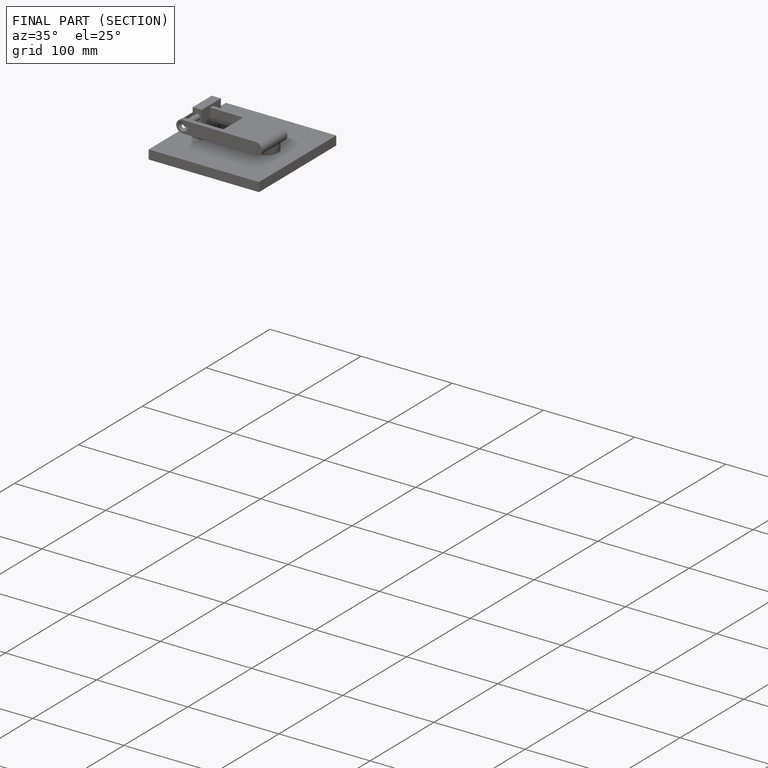
[diagram: finished part — half-section view (interior)]
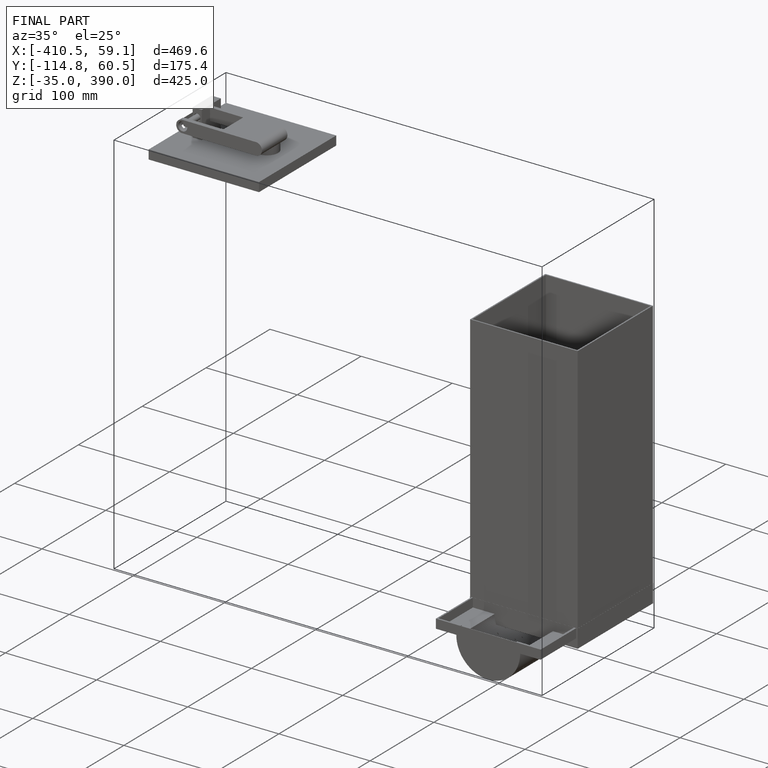
[diagram: finished part — iso view with bounding-box wireframe]
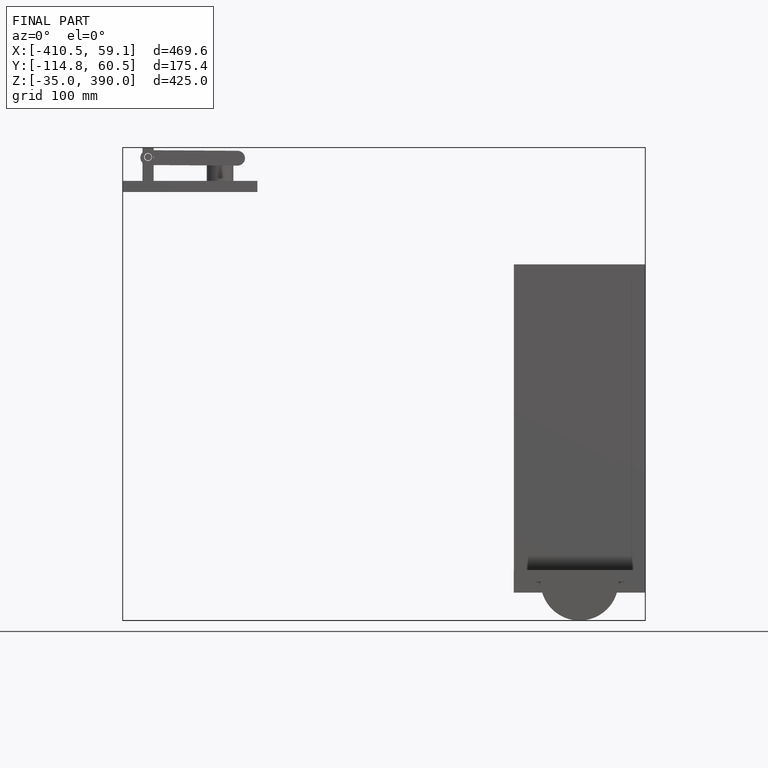
[diagram: finished part — front view with bounding-box wireframe]
